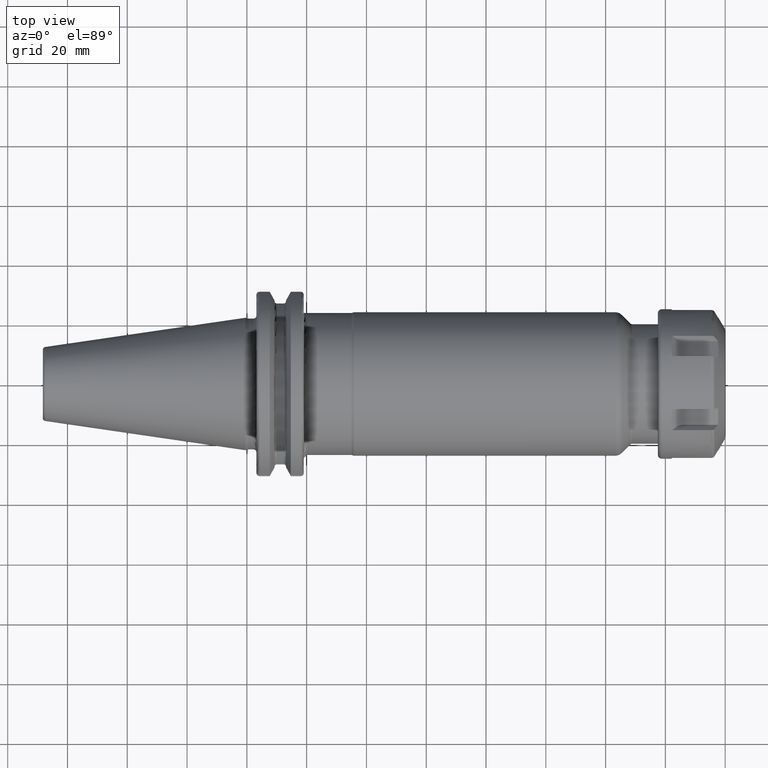
[diagram: clean part render]
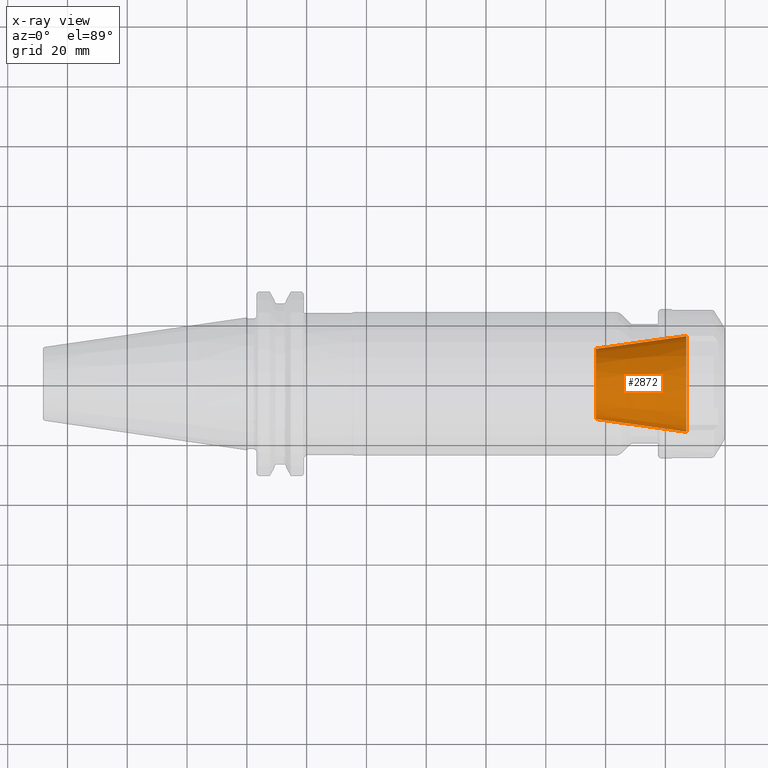
[diagram: x-ray — body ghosted, one internal face saturated and labeled with its STEP entity id]
A machine part, top view, then the same camera in x-ray: the body is ghosted and one INTERNAL B-rep face — a face not visible from any outside direction — is saturated and labeled: STEP entity #2872.
In plain terms, the highlighted conical surface has half-angle 8 deg.
Its self-contained STEP definition (entity closure, byte-faithful):
#1113=CARTESIAN_POINT('',(1.47E2,0.E0,0.E0));
#1114=DIRECTION('',(1.E0,0.E0,0.E0));
#1115=DIRECTION('',(0.E0,1.E0,0.E0));
#1116=AXIS2_PLACEMENT_3D('',#1113,#1114,#1115);
#1123=DIRECTION('',(-9.902680687416E-1,1.391731009601E-1,0.E0));
#1124=VECTOR('',#1123,3.053751027089E1);
#1125=CARTESIAN_POINT('',(1.47E2,-1.6E1,0.E0));
#1126=LINE('',#1125,#1124);
#1127=DIRECTION('',(-9.902680687416E-1,-1.391731009601E-1,0.E0));
#1128=VECTOR('',#1127,3.053751027089E1);
#1129=CARTESIAN_POINT('',(1.47E2,1.6E1,0.E0));
#1130=LINE('',#1129,#1128);
#1144=CARTESIAN_POINT('',(1.167596786799E2,0.E0,0.E0));
#1145=DIRECTION('',(1.E0,0.E0,0.E0));
#1146=DIRECTION('',(0.E0,1.E0,0.E0));
#1147=AXIS2_PLACEMENT_3D('',#1144,#1145,#1146);
#1615=CARTESIAN_POINT('',(1.167596786799E2,1.175E1,0.E0));
#1617=VERTEX_POINT('',#1615);
#1619=CARTESIAN_POINT('',(1.167596786799E2,-1.175E1,0.E0));
#1621=VERTEX_POINT('',#1619);
#1623=CARTESIAN_POINT('',(1.47E2,1.6E1,0.E0));
#1624=CARTESIAN_POINT('',(1.47E2,-1.6E1,0.E0));
#1625=VERTEX_POINT('',#1623);
#1626=VERTEX_POINT('',#1624);
#2858=CARTESIAN_POINT('',(1.318798393399E2,0.E0,0.E0));
#2859=DIRECTION('',(1.E0,0.E0,0.E0));
#2860=DIRECTION('',(0.E0,-1.E0,0.E0));
#2861=AXIS2_PLACEMENT_3D('',#2858,#2859,#2860);
#2862=CONICAL_SURFACE('',#2861,1.3875E1,8.E0);
#2863=ORIENTED_EDGE('',*,*,#2851,.F.);
#2865=ORIENTED_EDGE('',*,*,#2864,.T.);
#2867=ORIENTED_EDGE('',*,*,#2866,.T.);
#2869=ORIENTED_EDGE('',*,*,#2868,.F.);
#2870=EDGE_LOOP('',(#2863,#2865,#2867,#2869));
#2871=FACE_OUTER_BOUND('',#2870,.F.);
#2872=ADVANCED_FACE('',(#2871),#2862,.F.);
#1117=CIRCLE('',#1116,1.6E1);
#1148=CIRCLE('',#1147,1.175E1);
#2851=EDGE_CURVE('',#1625,#1626,#1117,.T.);
#2864=EDGE_CURVE('',#1625,#1617,#1130,.T.);
#2866=EDGE_CURVE('',#1617,#1621,#1148,.T.);
#2868=EDGE_CURVE('',#1626,#1621,#1126,.T.);